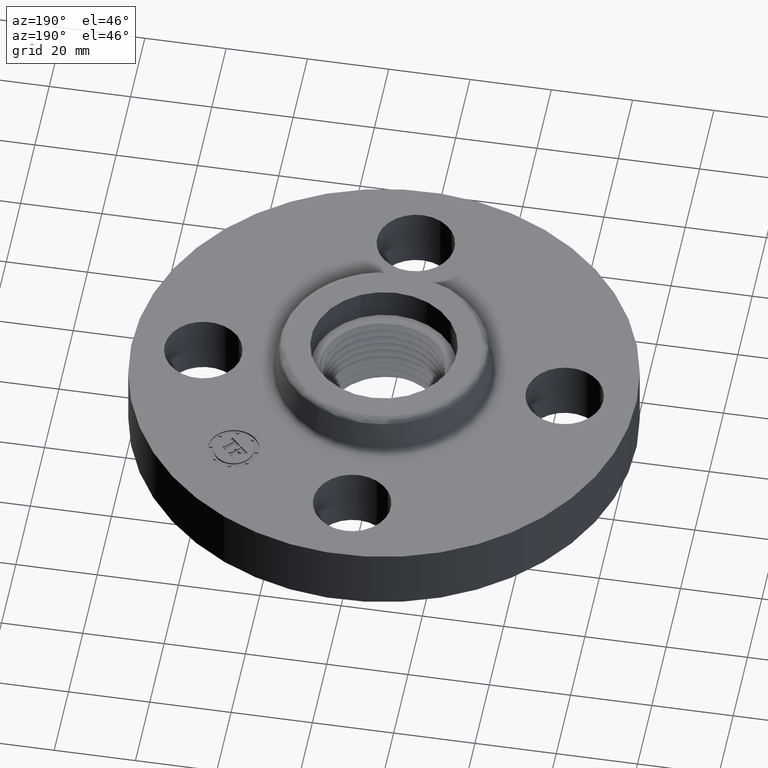
[diagram: clean part render]
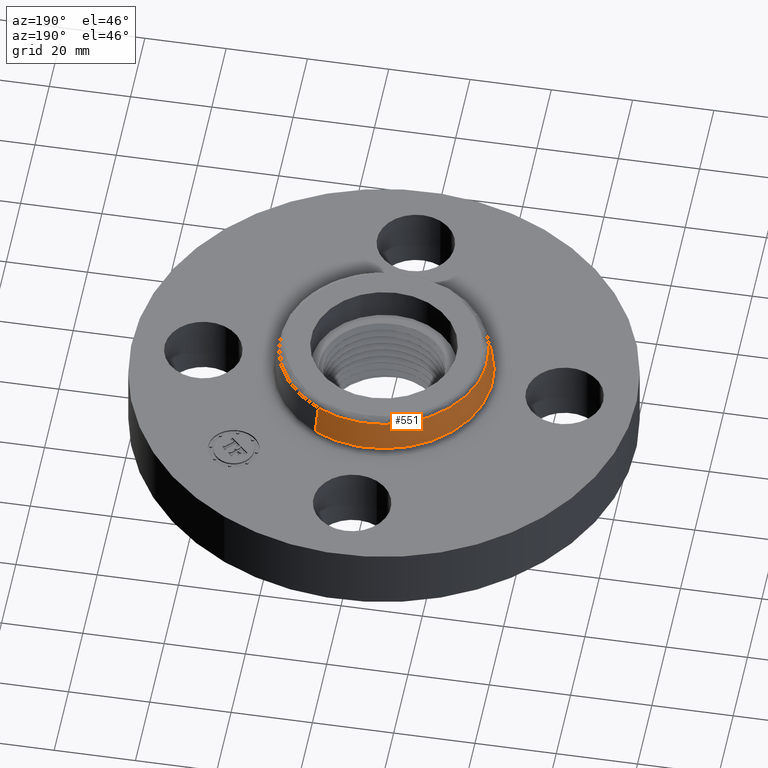
[diagram: same view with one face highlighted and labeled with its STEP entity id]
A machine part, auxiliary view. The second image highlights one B-rep face of the part: STEP entity #551.
In plain terms, the highlighted conical surface has half-angle 10 deg.
Its self-contained STEP definition (entity closure, byte-faithful):
#499=AXIS2_PLACEMENT_3D('Circle Axis2P3D',#497,#498,$) ;
#512=AXIS2_PLACEMENT_3D('Cone Axis2P3D',#509,#510,#511) ;
#542=AXIS2_PLACEMENT_3D('Circle Axis2P3D',#540,#541,$) ;
#470=CARTESIAN_POINT('Vertex',(0.503999699235,0.922565261197,0.669581109343)) ;
#477=CARTESIAN_POINT('Vertex',(-0.503999699235,-0.922565261197,0.669581109343)) ;
#497=CARTESIAN_POINT('Axis2P3D Location',(0.,0.,0.669581109343)) ;
#509=CARTESIAN_POINT('Axis2P3D Location',(0.,0.,0.950418890664)) ;
#514=CARTESIAN_POINT('Line Origine',(0.49212929596,0.90083663375,0.810000000003)) ;
#518=CARTESIAN_POINT('Vertex',(0.480258892685,0.879108006303,0.950418890664)) ;
#525=CARTESIAN_POINT('Vertex',(-0.480258892685,-0.879108006303,0.950418890664)) ;
#528=CARTESIAN_POINT('Line Origine',(-0.49212929596,-0.90083663375,0.810000000003)) ;
#540=CARTESIAN_POINT('Axis2P3D Location',(0.,0.,0.950418890664)) ;
#498=DIRECTION('Axis2P3D Direction',(0.,0.,-0.0393700787402)) ;
#510=DIRECTION('Axis2P3D Direction',(0.,0.,-0.0393700787402)) ;
#511=DIRECTION('Axis2P3D XDirection',(-0.0188750212049,-0.0345504945626,0.)) ;
#515=DIRECTION('Vector Direction',(0.00327761303565,0.00599963041829,-0.03877195878)) ;
#529=DIRECTION('Vector Direction',(-0.00327761303565,-0.00599963041829,-0.03877195878)) ;
#541=DIRECTION('Axis2P3D Direction',(0.,0.,-0.0393700787402)) ;
#516=VECTOR('Line Direction',#515,0.0393700787402) ;
#530=VECTOR('Line Direction',#529,0.0393700787402) ;
#546=ORIENTED_EDGE('',*,*,#501,.F.) ;
#547=ORIENTED_EDGE('',*,*,#532,.T.) ;
#548=ORIENTED_EDGE('',*,*,#544,.T.) ;
#549=ORIENTED_EDGE('',*,*,#520,.F.) ;
#551=ADVANCED_FACE('PartBody',(#550),#513,.T.) ;
#500=CIRCLE('generated circle',#499,1.05125751269) ;
#543=CIRCLE('generated circle',#542,1.00173823464) ;
#513=CONICAL_SURFACE('Cone',#512,1.00173823464,0.174532925199) ;
#501=EDGE_CURVE('',#478,#471,#500,.T.) ;
#520=EDGE_CURVE('',#471,#519,#517,.F.) ;
#532=EDGE_CURVE('',#478,#526,#531,.F.) ;
#544=EDGE_CURVE('',#526,#519,#543,.T.) ;
#545=EDGE_LOOP('',(#546,#547,#548,#549)) ;
#550=FACE_OUTER_BOUND('',#545,.T.) ;
#517=LINE('Line',#514,#516) ;
#531=LINE('Line',#528,#530) ;
#471=VERTEX_POINT('',#470) ;
#478=VERTEX_POINT('',#477) ;
#519=VERTEX_POINT('',#518) ;
#526=VERTEX_POINT('',#525) ;